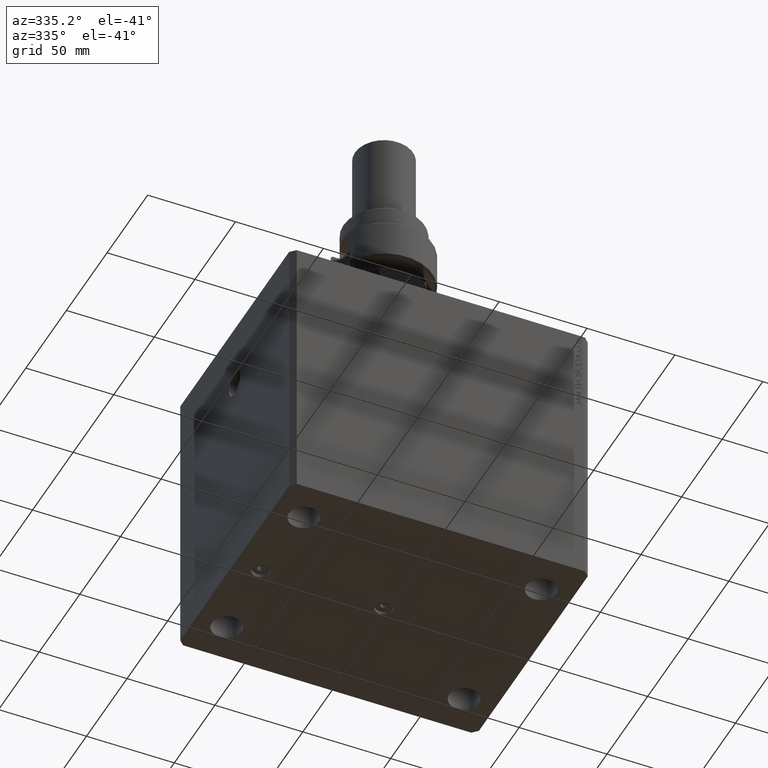
[diagram: clean part render]
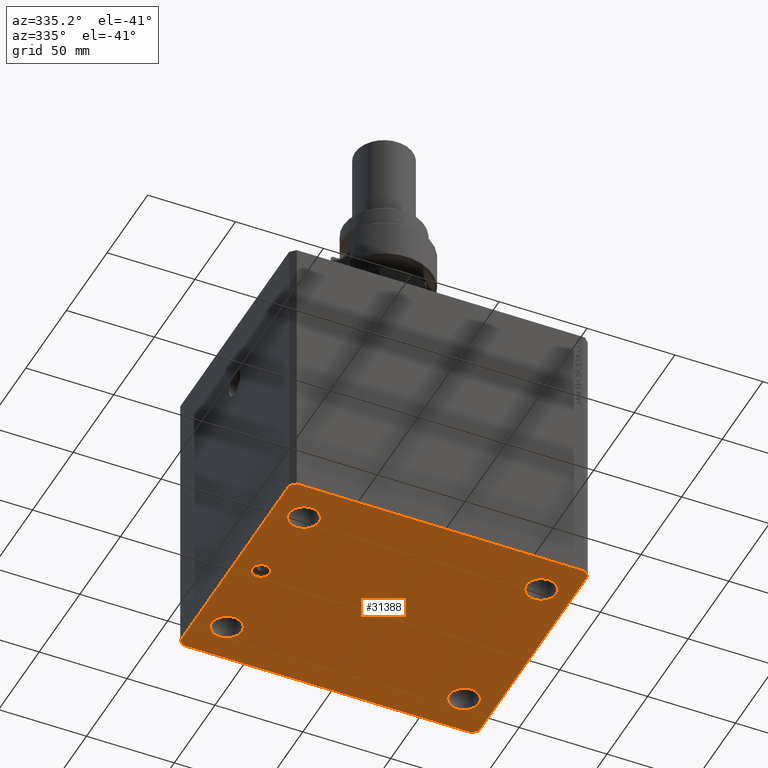
[diagram: same view with one face highlighted and labeled with its STEP entity id]
A machine part, auxiliary view. The second image highlights one B-rep face of the part: STEP entity #31388.
In plain terms, the highlighted planar face has unit normal (0, 0, 1).
Its self-contained STEP definition (entity closure, byte-faithful):
#655 = FACE_BOUND ( 'NONE', #30203, .T. ) ;
#871 = CARTESIAN_POINT ( 'NONE',  ( 67.50000000000000000, 47.49999999999999289, -160.0000000000000000 ) ) ;
#1469 = VERTEX_POINT ( 'NONE', #31916 ) ;
#1519 = CARTESIAN_POINT ( 'NONE',  ( 76.00000000000001421, 47.49999999999999289, -160.0000000000000000 ) ) ;
#1554 = CARTESIAN_POINT ( 'NONE',  ( -85.00000000000000000, -67.00000000000000000, -160.0000000000000000 ) ) ;
#1830 = CARTESIAN_POINT ( 'NONE',  ( -75.00000000000001421, 0.000000000000000000, -160.0000000000000000 ) ) ;
#2601 = EDGE_CURVE ( 'NONE', #42414, #36846, #32037, .T. ) ;
#3109 = DIRECTION ( 'NONE',  ( -0.000000000000000000, -0.000000000000000000, -1.000000000000000000 ) ) ;
#3196 = CIRCLE ( 'NONE', #11649, 5.000000000000000000 ) ;
#3309 = CARTESIAN_POINT ( 'NONE',  ( -82.00000000000000000, -70.00000000000000000, -160.0000000000000000 ) ) ;
#3565 = EDGE_CURVE ( 'NONE', #43380, #22225, #8234, .T. ) ;
#3744 = ORIENTED_EDGE ( 'NONE', *, *, #31372, .F. ) ;
#4100 = EDGE_CURVE ( 'NONE', #28633, #21841, #19037, .T. ) ;
#4144 = VECTOR ( 'NONE', #43430, 1000.000000000000114 ) ;
#4722 = FACE_BOUND ( 'NONE', #6530, .T. ) ;
#4839 = EDGE_LOOP ( 'NONE', ( #11254, #9190 ) ) ;
#5129 = DIRECTION ( 'NONE',  ( -0.000000000000000000, -0.000000000000000000, -1.000000000000000000 ) ) ;
#5190 = CIRCLE ( 'NONE', #35843, 8.499999999999992895 ) ;
#5217 = CARTESIAN_POINT ( 'NONE',  ( -67.50000000000000000, 47.50000000000000000, -160.0000000000000000 ) ) ;
#5265 = ORIENTED_EDGE ( 'NONE', *, *, #14769, .F. ) ;
#5382 = AXIS2_PLACEMENT_3D ( 'NONE', #36483, #3109, #22079 ) ;
#6098 = VERTEX_POINT ( 'NONE', #34736 ) ;
#6530 = EDGE_LOOP ( 'NONE', ( #40627, #20451 ) ) ;
#7123 = DIRECTION ( 'NONE',  ( -1.000000000000000000, 0.000000000000000000, 0.000000000000000000 ) ) ;
#7419 = CARTESIAN_POINT ( 'NONE',  ( -82.00000000000000000, -70.00000000000000000, -160.0000000000000000 ) ) ;
#7641 = CARTESIAN_POINT ( 'NONE',  ( 82.00000000000001421, -70.00000000000000000, -160.0000000000000000 ) ) ;
#7697 = CIRCLE ( 'NONE', #5382, 8.499999999999992895 ) ;
#7866 = ORIENTED_EDGE ( 'NONE', *, *, #39880, .F. ) ;
#8234 = LINE ( 'NONE', #16377, #47408 ) ;
#8673 = CIRCLE ( 'NONE', #27053, 8.499999999999992895 ) ;
#9190 = ORIENTED_EDGE ( 'NONE', *, *, #29165, .F. ) ;
#9424 = CARTESIAN_POINT ( 'NONE',  ( 0.000000000000000000, 0.000000000000000000, -160.0000000000000000 ) ) ;
#10093 = DIRECTION ( 'NONE',  ( 1.035655806553317576E-16, -1.000000000000000000, 0.000000000000000000 ) ) ;
#10108 = DIRECTION ( 'NONE',  ( 3.728360903591945148E-15, 1.000000000000000000, 0.000000000000000000 ) ) ;
#10173 = VECTOR ( 'NONE', #11320, 1000.000000000000114 ) ;
#10314 = CARTESIAN_POINT ( 'NONE',  ( -65.00000000000000000, 6.123233995736770227E-16, -160.0000000000000000 ) ) ;
#10388 = ORIENTED_EDGE ( 'NONE', *, *, #4100, .F. ) ;
#10730 = CARTESIAN_POINT ( 'NONE',  ( -85.00000000000000000, -67.00000000000000000, -160.0000000000000000 ) ) ;
#10902 = EDGE_CURVE ( 'NONE', #12001, #26097, #37646, .T. ) ;
#11254 = ORIENTED_EDGE ( 'NONE', *, *, #13320, .F. ) ;
#11320 = DIRECTION ( 'NONE',  ( -0.7071067811865507924, -0.7071067811865441310, 0.000000000000000000 ) ) ;
#11649 = AXIS2_PLACEMENT_3D ( 'NONE', #9424, #18887, #15285 ) ;
#11938 = FACE_OUTER_BOUND ( 'NONE', #20226, .T. ) ;
#12001 = VERTEX_POINT ( 'NONE', #43901 ) ;
#12061 = CIRCLE ( 'NONE', #17389, 8.499999999999992895 ) ;
#12158 = EDGE_LOOP ( 'NONE', ( #22576, #5265 ) ) ;
#12460 = DIRECTION ( 'NONE',  ( -0.000000000000000000, -0.000000000000000000, -1.000000000000000000 ) ) ;
#12696 = CARTESIAN_POINT ( 'NONE',  ( -67.49999999999998579, -47.50000000000001421, -160.0000000000000000 ) ) ;
#12982 = CARTESIAN_POINT ( 'NONE',  ( 85.00000000000052580, 66.99999999999995737, -160.0000000000000000 ) ) ;
#13014 = EDGE_CURVE ( 'NONE', #1469, #24857, #7697, .T. ) ;
#13048 = CARTESIAN_POINT ( 'NONE',  ( 0.000000000000000000, 0.000000000000000000, -160.0000000000000000 ) ) ;
#13320 = EDGE_CURVE ( 'NONE', #44465, #32630, #3196, .T. ) ;
#13760 = DIRECTION ( 'NONE',  ( -1.000000000000000000, 0.000000000000000000, 0.000000000000000000 ) ) ;
#14642 = DIRECTION ( 'NONE',  ( -0.000000000000000000, -0.000000000000000000, -1.000000000000000000 ) ) ;
#14769 = EDGE_CURVE ( 'NONE', #6098, #18387, #32271, .T. ) ;
#14852 = LINE ( 'NONE', #7641, #4144 ) ;
#15285 = DIRECTION ( 'NONE',  ( -1.000000000000000000, 0.000000000000000000, 0.000000000000000000 ) ) ;
#16377 = CARTESIAN_POINT ( 'NONE',  ( 82.00000000000056843, 70.00000000000000000, -160.0000000000000000 ) ) ;
#16958 = VERTEX_POINT ( 'NONE', #19342 ) ;
#17207 = AXIS2_PLACEMENT_3D ( 'NONE', #40770, #37160, #34015 ) ;
#17261 = CARTESIAN_POINT ( 'NONE',  ( 85.00000000000052580, 66.99999999999995737, -160.0000000000000000 ) ) ;
#17389 = AXIS2_PLACEMENT_3D ( 'NONE', #12696, #12460, #38623 ) ;
#17655 = CARTESIAN_POINT ( 'NONE',  ( 67.50000000000000000, 47.49999999999999289, -160.0000000000000000 ) ) ;
#18387 = VERTEX_POINT ( 'NONE', #36371 ) ;
#18887 = DIRECTION ( 'NONE',  ( 0.000000000000000000, 0.000000000000000000, -1.000000000000000000 ) ) ;
#18973 = AXIS2_PLACEMENT_3D ( 'NONE', #13048, #46435, #13760 ) ;
#19037 = CIRCLE ( 'NONE', #44354, 5.000000000000004441 ) ;
#19257 = CARTESIAN_POINT ( 'NONE',  ( -85.00000000000001421, 67.00000000000001421, -160.0000000000000000 ) ) ;
#19342 = CARTESIAN_POINT ( 'NONE',  ( 82.00000000000001421, -70.00000000000000000, -160.0000000000000000 ) ) ;
#19369 = AXIS2_PLACEMENT_3D ( 'NONE', #17655, #39758, #31844 ) ;
#19618 = CARTESIAN_POINT ( 'NONE',  ( 59.00000000000000000, 47.49999999999999289, -160.0000000000000000 ) ) ;
#19732 = EDGE_CURVE ( 'NONE', #36846, #42414, #26274, .T. ) ;
#19782 = DIRECTION ( 'NONE',  ( 1.000000000000000000, 0.000000000000000000, 0.000000000000000000 ) ) ;
#19919 = CARTESIAN_POINT ( 'NONE',  ( 82.00000000000056843, 70.00000000000000000, -160.0000000000000000 ) ) ;
#20087 = CARTESIAN_POINT ( 'NONE',  ( 5.000000000000000000, 6.123233995736765296E-16, -160.0000000000000000 ) ) ;
#20226 = EDGE_LOOP ( 'NONE', ( #43577, #37961, #25989, #46421, #3744, #35061, #7866, #27542 ) ) ;
#20451 = ORIENTED_EDGE ( 'NONE', *, *, #10902, .F. ) ;
#20672 = EDGE_CURVE ( 'NONE', #22225, #31791, #22373, .T. ) ;
#21023 = CIRCLE ( 'NONE', #27162, 5.000000000000004441 ) ;
#21178 = EDGE_CURVE ( 'NONE', #18387, #6098, #8673, .T. ) ;
#21378 = CARTESIAN_POINT ( 'NONE',  ( -85.00000000000001421, 67.00000000000001421, -160.0000000000000000 ) ) ;
#21841 = VERTEX_POINT ( 'NONE', #10314 ) ;
#22079 = DIRECTION ( 'NONE',  ( 1.000000000000000000, 0.000000000000000000, 0.000000000000000000 ) ) ;
#22225 = VERTEX_POINT ( 'NONE', #43887 ) ;
#22231 = DIRECTION ( 'NONE',  ( -0.000000000000000000, -0.000000000000000000, -1.000000000000000000 ) ) ;
#22373 = LINE ( 'NONE', #25966, #10173 ) ;
#22576 = ORIENTED_EDGE ( 'NONE', *, *, #21178, .F. ) ;
#22707 = CARTESIAN_POINT ( 'NONE',  ( -70.00000000000000000, 0.000000000000000000, -160.0000000000000000 ) ) ;
#22714 = DIRECTION ( 'NONE',  ( 1.000000000000000000, 0.000000000000000000, 0.000000000000000000 ) ) ;
#22805 = CIRCLE ( 'NONE', #18973, 5.000000000000000000 ) ;
#23576 = DIRECTION ( 'NONE',  ( -1.000000000000000000, 0.000000000000000000, 0.000000000000000000 ) ) ;
#23729 = EDGE_CURVE ( 'NONE', #26205, #26947, #39073, .T. ) ;
#24263 = VERTEX_POINT ( 'NONE', #35369 ) ;
#24857 = VERTEX_POINT ( 'NONE', #43354 ) ;
#25447 = CARTESIAN_POINT ( 'NONE',  ( -70.00000000000000000, 0.000000000000000000, -160.0000000000000000 ) ) ;
#25966 = CARTESIAN_POINT ( 'NONE',  ( -82.00000000000000000, 70.00000000000000000, -160.0000000000000000 ) ) ;
#25989 = ORIENTED_EDGE ( 'NONE', *, *, #31171, .F. ) ;
#26009 = ORIENTED_EDGE ( 'NONE', *, *, #28450, .F. ) ;
#26097 = VERTEX_POINT ( 'NONE', #32160 ) ;
#26133 = AXIS2_PLACEMENT_3D ( 'NONE', #36251, #14642, #29773 ) ;
#26205 = VERTEX_POINT ( 'NONE', #1554 ) ;
#26274 = CIRCLE ( 'NONE', #19369, 8.500000000000007105 ) ;
#26529 = DIRECTION ( 'NONE',  ( 1.000000000000000000, 0.000000000000000000, 0.000000000000000000 ) ) ;
#26947 = VERTEX_POINT ( 'NONE', #7419 ) ;
#26998 = EDGE_CURVE ( 'NONE', #37894, #43380, #47295, .T. ) ;
#27053 = AXIS2_PLACEMENT_3D ( 'NONE', #5217, #34986, #34753 ) ;
#27149 = VECTOR ( 'NONE', #31880, 1000.000000000000114 ) ;
#27162 = AXIS2_PLACEMENT_3D ( 'NONE', #25447, #40349, #36974 ) ;
#27542 = ORIENTED_EDGE ( 'NONE', *, *, #20672, .F. ) ;
#28450 = EDGE_CURVE ( 'NONE', #24857, #1469, #12061, .T. ) ;
#28633 = VERTEX_POINT ( 'NONE', #1830 ) ;
#28670 = ORIENTED_EDGE ( 'NONE', *, *, #34990, .F. ) ;
#28795 = DIRECTION ( 'NONE',  ( -0.7071067811865361374, 0.7071067811865588970, 0.000000000000000000 ) ) ;
#29165 = EDGE_CURVE ( 'NONE', #32630, #44465, #22805, .T. ) ;
#29726 = FACE_BOUND ( 'NONE', #4839, .T. ) ;
#29752 = AXIS2_PLACEMENT_3D ( 'NONE', #871, #37369, #22714 ) ;
#29773 = DIRECTION ( 'NONE',  ( 1.000000000000000000, 0.000000000000000000, 0.000000000000000000 ) ) ;
#30166 = DIRECTION ( 'NONE',  ( 0.000000000000000000, 0.000000000000000000, -1.000000000000000000 ) ) ;
#30203 = EDGE_LOOP ( 'NONE', ( #10388, #28670 ) ) ;
#30498 = VECTOR ( 'NONE', #10093, 1000.000000000000000 ) ;
#30793 = ORIENTED_EDGE ( 'NONE', *, *, #13014, .F. ) ;
#31171 = EDGE_CURVE ( 'NONE', #24263, #37894, #31973, .T. ) ;
#31372 = EDGE_CURVE ( 'NONE', #26947, #16958, #36200, .T. ) ;
#31388 = ADVANCED_FACE ( 'NONE', ( #29726, #655, #37853, #4722, #36925, #45065, #11938 ), #34241, .F. ) ;
#31791 = VERTEX_POINT ( 'NONE', #19257 ) ;
#31844 = DIRECTION ( 'NONE',  ( 1.000000000000000000, 0.000000000000000000, 0.000000000000000000 ) ) ;
#31880 = DIRECTION ( 'NONE',  ( 0.7071067811865474617, -0.7071067811865474617, 0.000000000000000000 ) ) ;
#31916 = CARTESIAN_POINT ( 'NONE',  ( -75.99999999999998579, -47.50000000000001421, -160.0000000000000000 ) ) ;
#31973 = LINE ( 'NONE', #43020, #40237 ) ;
#32037 = CIRCLE ( 'NONE', #29752, 8.500000000000007105 ) ;
#32160 = CARTESIAN_POINT ( 'NONE',  ( 75.99999999999998579, -47.50000000000001421, -160.0000000000000000 ) ) ;
#32271 = CIRCLE ( 'NONE', #39949, 8.499999999999992895 ) ;
#32630 = VERTEX_POINT ( 'NONE', #20087 ) ;
#33145 = EDGE_CURVE ( 'NONE', #16958, #24263, #14852, .T. ) ;
#34015 = DIRECTION ( 'NONE',  ( 1.000000000000000000, 0.000000000000000000, -0.000000000000000000 ) ) ;
#34241 = PLANE ( 'NONE',  #17207 ) ;
#34736 = CARTESIAN_POINT ( 'NONE',  ( -76.00000000000000000, 47.50000000000000000, -160.0000000000000000 ) ) ;
#34753 = DIRECTION ( 'NONE',  ( 1.000000000000000000, 0.000000000000000000, 0.000000000000000000 ) ) ;
#34986 = DIRECTION ( 'NONE',  ( -0.000000000000000000, -0.000000000000000000, -1.000000000000000000 ) ) ;
#34990 = EDGE_CURVE ( 'NONE', #21841, #28633, #21023, .T. ) ;
#35061 = ORIENTED_EDGE ( 'NONE', *, *, #23729, .F. ) ;
#35369 = CARTESIAN_POINT ( 'NONE',  ( 85.00000000000001421, -67.00000000000000000, -160.0000000000000000 ) ) ;
#35843 = AXIS2_PLACEMENT_3D ( 'NONE', #38024, #5129, #19782 ) ;
#36200 = LINE ( 'NONE', #3309, #37918 ) ;
#36251 = CARTESIAN_POINT ( 'NONE',  ( 67.49999999999998579, -47.50000000000001421, -160.0000000000000000 ) ) ;
#36265 = LINE ( 'NONE', #21378, #30498 ) ;
#36371 = CARTESIAN_POINT ( 'NONE',  ( -59.00000000000001421, 47.50000000000000000, -160.0000000000000000 ) ) ;
#36483 = CARTESIAN_POINT ( 'NONE',  ( -67.49999999999998579, -47.50000000000001421, -160.0000000000000000 ) ) ;
#36846 = VERTEX_POINT ( 'NONE', #1519 ) ;
#36925 = FACE_BOUND ( 'NONE', #41907, .T. ) ;
#36974 = DIRECTION ( 'NONE',  ( -1.000000000000000000, 0.000000000000000000, 0.000000000000000000 ) ) ;
#37160 = DIRECTION ( 'NONE',  ( 0.000000000000000000, 0.000000000000000000, 1.000000000000000000 ) ) ;
#37369 = DIRECTION ( 'NONE',  ( -0.000000000000000000, -0.000000000000000000, -1.000000000000000000 ) ) ;
#37646 = CIRCLE ( 'NONE', #26133, 8.499999999999992895 ) ;
#37853 = FACE_BOUND ( 'NONE', #43645, .T. ) ;
#37894 = VERTEX_POINT ( 'NONE', #12982 ) ;
#37918 = VECTOR ( 'NONE', #40061, 1000.000000000000000 ) ;
#37961 = ORIENTED_EDGE ( 'NONE', *, *, #26998, .F. ) ;
#38024 = CARTESIAN_POINT ( 'NONE',  ( 67.49999999999998579, -47.50000000000001421, -160.0000000000000000 ) ) ;
#38623 = DIRECTION ( 'NONE',  ( 1.000000000000000000, 0.000000000000000000, 0.000000000000000000 ) ) ;
#38734 = VECTOR ( 'NONE', #28795, 1000.000000000000114 ) ;
#39073 = LINE ( 'NONE', #10730, #27149 ) ;
#39475 = EDGE_CURVE ( 'NONE', #26097, #12001, #5190, .T. ) ;
#39758 = DIRECTION ( 'NONE',  ( -0.000000000000000000, -0.000000000000000000, -1.000000000000000000 ) ) ;
#39880 = EDGE_CURVE ( 'NONE', #31791, #26205, #36265, .T. ) ;
#39949 = AXIS2_PLACEMENT_3D ( 'NONE', #41652, #22231, #26529 ) ;
#40061 = DIRECTION ( 'NONE',  ( 1.000000000000000000, 0.000000000000000000, 0.000000000000000000 ) ) ;
#40099 = ORIENTED_EDGE ( 'NONE', *, *, #19732, .F. ) ;
#40237 = VECTOR ( 'NONE', #10108, 1000.000000000000000 ) ;
#40349 = DIRECTION ( 'NONE',  ( 0.000000000000000000, 0.000000000000000000, -1.000000000000000000 ) ) ;
#40627 = ORIENTED_EDGE ( 'NONE', *, *, #39475, .F. ) ;
#40770 = CARTESIAN_POINT ( 'NONE',  ( 0.000000000000000000, 0.000000000000000000, -160.0000000000000000 ) ) ;
#41652 = CARTESIAN_POINT ( 'NONE',  ( -67.50000000000000000, 47.50000000000000000, -160.0000000000000000 ) ) ;
#41907 = EDGE_LOOP ( 'NONE', ( #40099, #43388 ) ) ;
#42414 = VERTEX_POINT ( 'NONE', #19618 ) ;
#43020 = CARTESIAN_POINT ( 'NONE',  ( 85.00000000000001421, -67.00000000000000000, -160.0000000000000000 ) ) ;
#43354 = CARTESIAN_POINT ( 'NONE',  ( -59.00000000000000000, -47.50000000000001421, -160.0000000000000000 ) ) ;
#43380 = VERTEX_POINT ( 'NONE', #19919 ) ;
#43388 = ORIENTED_EDGE ( 'NONE', *, *, #2601, .F. ) ;
#43430 = DIRECTION ( 'NONE',  ( 0.7071067811865474617, 0.7071067811865474617, 0.000000000000000000 ) ) ;
#43577 = ORIENTED_EDGE ( 'NONE', *, *, #3565, .F. ) ;
#43645 = EDGE_LOOP ( 'NONE', ( #26009, #30793 ) ) ;
#43887 = CARTESIAN_POINT ( 'NONE',  ( -82.00000000000000000, 70.00000000000000000, -160.0000000000000000 ) ) ;
#43901 = CARTESIAN_POINT ( 'NONE',  ( 59.00000000000000000, -47.50000000000001421, -160.0000000000000000 ) ) ;
#44354 = AXIS2_PLACEMENT_3D ( 'NONE', #22707, #30166, #7123 ) ;
#44465 = VERTEX_POINT ( 'NONE', #47371 ) ;
#45065 = FACE_BOUND ( 'NONE', #12158, .T. ) ;
#46421 = ORIENTED_EDGE ( 'NONE', *, *, #33145, .F. ) ;
#46435 = DIRECTION ( 'NONE',  ( 0.000000000000000000, 0.000000000000000000, -1.000000000000000000 ) ) ;
#47295 = LINE ( 'NONE', #17261, #38734 ) ;
#47371 = CARTESIAN_POINT ( 'NONE',  ( -5.000000000000000000, 0.000000000000000000, -160.0000000000000000 ) ) ;
#47408 = VECTOR ( 'NONE', #23576, 1000.000000000000000 ) ;